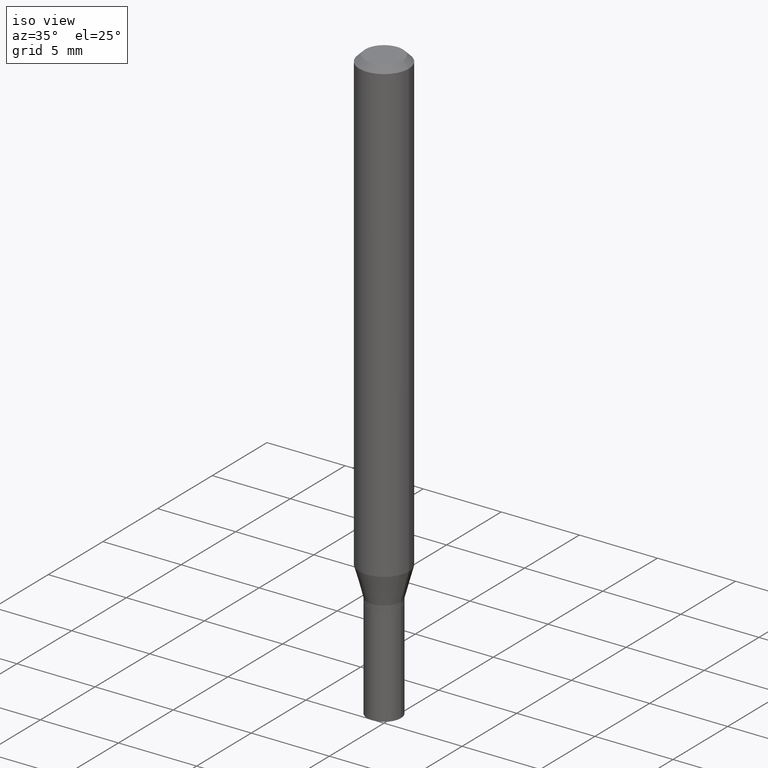
[diagram: clean part render]
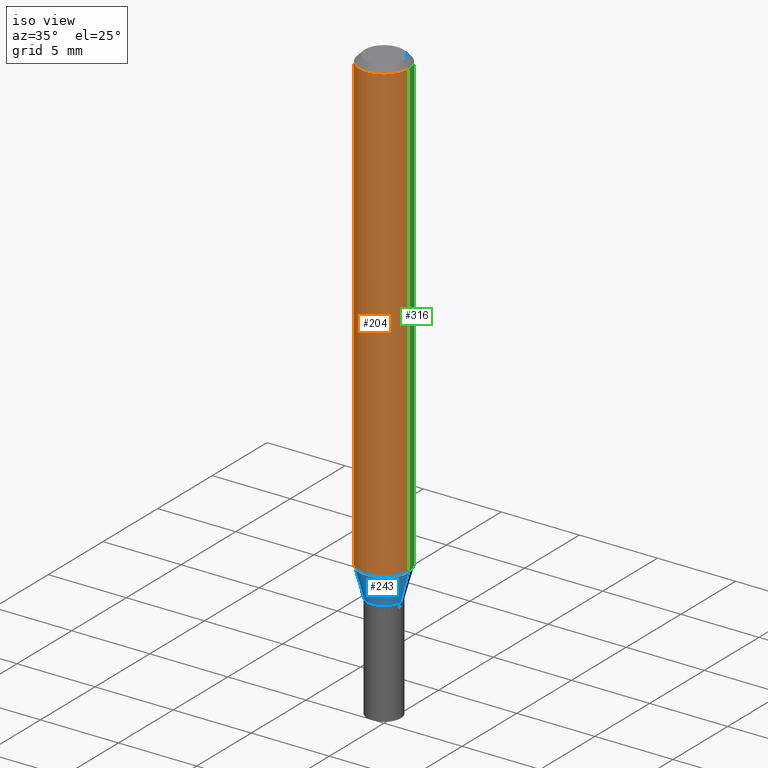
[diagram: same view with three faces highlighted in distinct colors, each labeled with its STEP entity id]
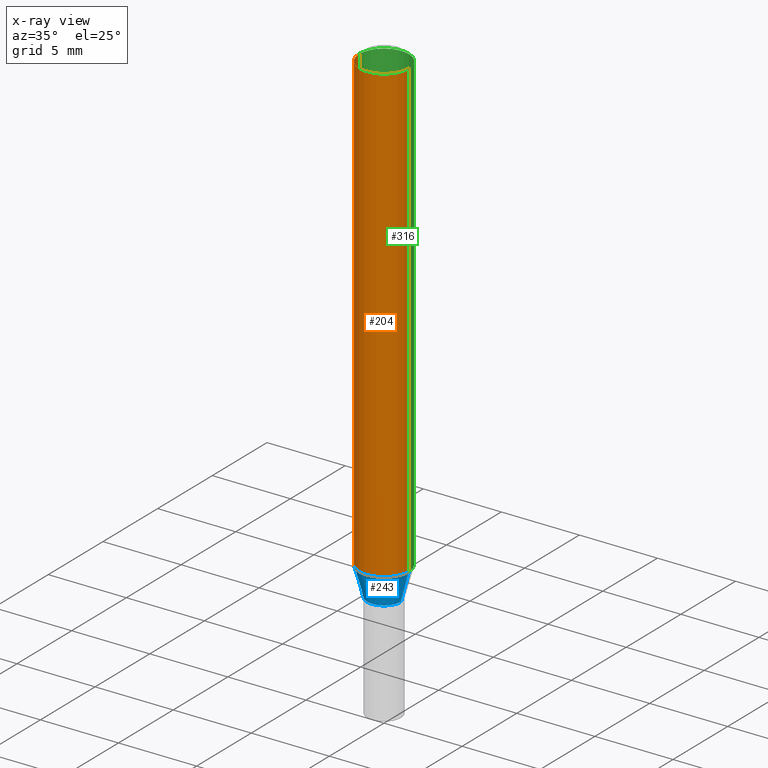
[diagram: x-ray of the same camera — body ghosted, the three highlighted faces saturated]
A machine part, iso view with three faces highlighted in distinct colors.
The next image is the same camera in x-ray (body ghosted, the three faces saturated) — at least one of them is partly hidden behind the body in this view.
Their STEP definitions:

[orange] entity #204 — the highlighted cylindrical surface (edge-blend (fillet) strip) has radius 1.5875 mm, axis along (-0, 0, 1).
#17 = DIRECTION ( 'NONE',  ( 1.000000000000000000, -6.982962677686266711E-15, 0.000000000000000000 ) ) ;
#20 = VERTEX_POINT ( 'NONE', #63 ) ;
#37 = CIRCLE ( 'NONE', #434, 0.06250000000000000000 ) ;
#41 = FACE_OUTER_BOUND ( 'NONE', #342, .T. ) ;
#63 = CARTESIAN_POINT ( 'NONE',  ( -0.06250000000000000000, -3.607282528616397190E-15, -1.160358983848622350 ) ) ;
#72 = LINE ( 'NONE', #353, #432 ) ;
#116 = CARTESIAN_POINT ( 'NONE',  ( 0.000000000000000000, 0.000000000000000000, 0.000000000000000000 ) ) ;
#121 = DIRECTION ( 'NONE',  ( -2.445468806185136597E-29, 3.491481338843145583E-15, 1.000000000000000000 ) ) ;
#132 = EDGE_CURVE ( 'NONE', #269, #461, #72, .T. ) ;
#146 = CARTESIAN_POINT ( 'NONE',  ( 2.837621698978488538E-29, -4.051371738466459806E-15, -1.160358983848622350 ) ) ;
#165 = CARTESIAN_POINT ( 'NONE',  ( -0.06250000000000000000, -1.607782769424491024E-15, -0.01499999999999999944 ) ) ;
#184 = DIRECTION ( 'NONE',  ( -2.445468806185136597E-29, 3.491481338843145583E-15, 1.000000000000000000 ) ) ;
#198 = VECTOR ( 'NONE', #444, 39.37007874015748143 ) ;
#202 = ORIENTED_EDGE ( 'NONE', *, *, #132, .T. ) ;
#204 = ADVANCED_FACE ( 'NONE', ( #41 ), #296, .T. ) ;
#219 = EDGE_CURVE ( 'NONE', #20, #269, #230, .T. ) ;
#230 = CIRCLE ( 'NONE', #441, 0.06250000000000000000 ) ;
#249 = ORIENTED_EDGE ( 'NONE', *, *, #340, .F. ) ;
#269 = VERTEX_POINT ( 'NONE', #407 ) ;
#288 = ORIENTED_EDGE ( 'NONE', *, *, #219, .T. ) ;
#294 = DIRECTION ( 'NONE',  ( -2.445468806185136597E-29, 3.491481338843145583E-15, 1.000000000000000000 ) ) ;
#296 = CYLINDRICAL_SURFACE ( 'NONE', #446, 0.06250000000000000000 ) ;
#302 = CARTESIAN_POINT ( 'NONE',  ( 3.668203209277705088E-31, -5.237222008264718399E-17, -0.01499999999999999944 ) ) ;
#325 = DIRECTION ( 'NONE',  ( 1.000000000000000000, -6.982962677686266711E-15, 4.876176775795935793E-29 ) ) ;
#337 = EDGE_CURVE ( 'NONE', #416, #461, #37, .T. ) ;
#340 = EDGE_CURVE ( 'NONE', #20, #416, #447, .T. ) ;
#342 = EDGE_LOOP ( 'NONE', ( #249, #288, #202, #408 ) ) ;
#353 = CARTESIAN_POINT ( 'NONE',  ( 0.06250000000000000000, -4.364351673553916694E-16, 3.047610484872459871E-30 ) ) ;
#357 = DIRECTION ( 'NONE',  ( -2.445468806185136877E-29, 3.491481338843145188E-15, 1.000000000000000000 ) ) ;
#404 = CARTESIAN_POINT ( 'NONE',  ( -0.06250000000000000000, 4.440892098500626162E-16, -3.074334431409316114E-30 ) ) ;
#407 = CARTESIAN_POINT ( 'NONE',  ( 0.06250000000000000000, -4.487806905821851475E-15, -1.160358983848622350 ) ) ;
#408 = ORIENTED_EDGE ( 'NONE', *, *, #337, .F. ) ;
#416 = VERTEX_POINT ( 'NONE', #165 ) ;
#417 = CARTESIAN_POINT ( 'NONE',  ( 0.06250000000000000000, -4.888073874380388472E-16, -0.01499999999999999944 ) ) ;
#432 = VECTOR ( 'NONE', #357, 39.37007874015748143 ) ;
#434 = AXIS2_PLACEMENT_3D ( 'NONE', #302, #121, #17 ) ;
#436 = DIRECTION ( 'NONE',  ( 1.000000000000000000, -6.982962677686270655E-15, 0.000000000000000000 ) ) ;
#441 = AXIS2_PLACEMENT_3D ( 'NONE', #146, #294, #436 ) ;
#444 = DIRECTION ( 'NONE',  ( -2.445468806185136877E-29, 3.491481338843145188E-15, 1.000000000000000000 ) ) ;
#446 = AXIS2_PLACEMENT_3D ( 'NONE', #116, #184, #325 ) ;
#447 = LINE ( 'NONE', #404, #198 ) ;
#461 = VERTEX_POINT ( 'NONE', #417 ) ;

[blue] entity #243 — the highlighted conical surface has half-angle 15 deg.
#15 = CARTESIAN_POINT ( 'NONE',  ( 3.020153975638643988E-29, -4.311979453471284998E-15, -1.235000000000000098 ) ) ;
#20 = VERTEX_POINT ( 'NONE', #63 ) ;
#26 = VERTEX_POINT ( 'NONE', #242 ) ;
#28 = ORIENTED_EDGE ( 'NONE', *, *, #226, .T. ) ;
#30 = EDGE_CURVE ( 'NONE', #26, #20, #306, .T. ) ;
#38 = DIRECTION ( 'NONE',  ( 0.2588190451025209615, 1.565188264969624926E-15, 0.9659258262890682012 ) ) ;
#49 = AXIS2_PLACEMENT_3D ( 'NONE', #15, #158, #401 ) ;
#63 = CARTESIAN_POINT ( 'NONE',  ( -0.06250000000000000000, -3.607282528616397190E-15, -1.160358983848622350 ) ) ;
#100 = ORIENTED_EDGE ( 'NONE', *, *, #30, .F. ) ;
#104 = VECTOR ( 'NONE', #38, 39.37007874015748143 ) ;
#105 = CONICAL_SURFACE ( 'NONE', #49, 0.04249999999999993366, 0.2617993877991496299 ) ;
#112 = AXIS2_PLACEMENT_3D ( 'NONE', #261, #396, #330 ) ;
#137 = VECTOR ( 'NONE', #375, 39.37007874015748143 ) ;
#143 = EDGE_CURVE ( 'NONE', #420, #269, #181, .T. ) ;
#146 = CARTESIAN_POINT ( 'NONE',  ( 2.837621698978488538E-29, -4.051371738466459806E-15, -1.160358983848622350 ) ) ;
#158 = DIRECTION ( 'NONE',  ( -2.445468806185136597E-29, 3.491481338843145583E-15, 1.000000000000000000 ) ) ;
#162 = CARTESIAN_POINT ( 'NONE',  ( 0.04249999999999993366, -4.608755367272951648E-15, -1.235000000000000098 ) ) ;
#181 = LINE ( 'NONE', #257, #104 ) ;
#209 = ORIENTED_EDGE ( 'NONE', *, *, #143, .T. ) ;
#219 = EDGE_CURVE ( 'NONE', #20, #269, #230, .T. ) ;
#226 = EDGE_CURVE ( 'NONE', #26, #420, #262, .T. ) ;
#230 = CIRCLE ( 'NONE', #441, 0.06250000000000000000 ) ;
#242 = CARTESIAN_POINT ( 'NONE',  ( -0.04249999999999993366, -3.808640659694819867E-15, -1.235000000000000098 ) ) ;
#243 = ADVANCED_FACE ( 'NONE', ( #443 ), #105, .T. ) ;
#246 = EDGE_LOOP ( 'NONE', ( #100, #28, #209, #250 ) ) ;
#250 = ORIENTED_EDGE ( 'NONE', *, *, #219, .F. ) ;
#257 = CARTESIAN_POINT ( 'NONE',  ( 0.04249999999999993366, -4.608755367272951648E-15, -1.235000000000000098 ) ) ;
#261 = CARTESIAN_POINT ( 'NONE',  ( 3.020153975638643988E-29, -4.311979453471284998E-15, -1.235000000000000098 ) ) ;
#262 = CIRCLE ( 'NONE', #112, 0.04249999999999993366 ) ;
#269 = VERTEX_POINT ( 'NONE', #407 ) ;
#294 = DIRECTION ( 'NONE',  ( -2.445468806185136597E-29, 3.491481338843145583E-15, 1.000000000000000000 ) ) ;
#306 = LINE ( 'NONE', #459, #137 ) ;
#330 = DIRECTION ( 'NONE',  ( 1.000000000000000000, -6.982962677686275388E-15, 0.000000000000000000 ) ) ;
#375 = DIRECTION ( 'NONE',  ( -0.2588190451025209615, 5.211531920934547097E-15, 0.9659258262890682012 ) ) ;
#396 = DIRECTION ( 'NONE',  ( -2.445468806185136597E-29, 3.491481338843145583E-15, 1.000000000000000000 ) ) ;
#401 = DIRECTION ( 'NONE',  ( 1.000000000000000000, -6.982962677686275388E-15, 0.000000000000000000 ) ) ;
#407 = CARTESIAN_POINT ( 'NONE',  ( 0.06250000000000000000, -4.487806905821851475E-15, -1.160358983848622350 ) ) ;
#420 = VERTEX_POINT ( 'NONE', #162 ) ;
#436 = DIRECTION ( 'NONE',  ( 1.000000000000000000, -6.982962677686270655E-15, 0.000000000000000000 ) ) ;
#441 = AXIS2_PLACEMENT_3D ( 'NONE', #146, #294, #436 ) ;
#443 = FACE_OUTER_BOUND ( 'NONE', #246, .T. ) ;
#459 = CARTESIAN_POINT ( 'NONE',  ( -0.04249999999999993366, -4.009998790773243334E-15, -1.235000000000000098 ) ) ;

[green] entity #316 — the highlighted cylindrical surface (edge-blend (fillet) strip) has radius 1.5875 mm, axis along (-0, 0, 1).
#9 = CARTESIAN_POINT ( 'NONE',  ( 0.000000000000000000, 0.000000000000000000, 0.000000000000000000 ) ) ;
#20 = VERTEX_POINT ( 'NONE', #63 ) ;
#25 = CIRCLE ( 'NONE', #167, 0.06250000000000000000 ) ;
#63 = CARTESIAN_POINT ( 'NONE',  ( -0.06250000000000000000, -3.607282528616397190E-15, -1.160358983848622350 ) ) ;
#72 = LINE ( 'NONE', #353, #432 ) ;
#76 = EDGE_CURVE ( 'NONE', #461, #416, #25, .T. ) ;
#91 = DIRECTION ( 'NONE',  ( -2.445468806185136597E-29, 3.491481338843145583E-15, 1.000000000000000000 ) ) ;
#132 = EDGE_CURVE ( 'NONE', #269, #461, #72, .T. ) ;
#165 = CARTESIAN_POINT ( 'NONE',  ( -0.06250000000000000000, -1.607782769424491024E-15, -0.01499999999999999944 ) ) ;
#167 = AXIS2_PLACEMENT_3D ( 'NONE', #291, #322, #212 ) ;
#175 = ORIENTED_EDGE ( 'NONE', *, *, #340, .T. ) ;
#176 = ORIENTED_EDGE ( 'NONE', *, *, #76, .F. ) ;
#198 = VECTOR ( 'NONE', #444, 39.37007874015748143 ) ;
#206 = CIRCLE ( 'NONE', #239, 0.06250000000000000000 ) ;
#212 = DIRECTION ( 'NONE',  ( 1.000000000000000000, -6.982962677686266711E-15, 0.000000000000000000 ) ) ;
#227 = CARTESIAN_POINT ( 'NONE',  ( 2.837621698978488538E-29, -4.051371738466459806E-15, -1.160358983848622350 ) ) ;
#239 = AXIS2_PLACEMENT_3D ( 'NONE', #227, #336, #360 ) ;
#240 = ORIENTED_EDGE ( 'NONE', *, *, #132, .F. ) ;
#244 = ORIENTED_EDGE ( 'NONE', *, *, #271, .T. ) ;
#267 = CYLINDRICAL_SURFACE ( 'NONE', #309, 0.06250000000000000000 ) ;
#269 = VERTEX_POINT ( 'NONE', #407 ) ;
#271 = EDGE_CURVE ( 'NONE', #269, #20, #206, .T. ) ;
#274 = EDGE_LOOP ( 'NONE', ( #244, #175, #176, #240 ) ) ;
#291 = CARTESIAN_POINT ( 'NONE',  ( 3.668203209277705088E-31, -5.237222008264718399E-17, -0.01499999999999999944 ) ) ;
#309 = AXIS2_PLACEMENT_3D ( 'NONE', #9, #91, #335 ) ;
#316 = ADVANCED_FACE ( 'NONE', ( #440 ), #267, .T. ) ;
#322 = DIRECTION ( 'NONE',  ( -2.445468806185136597E-29, 3.491481338843145583E-15, 1.000000000000000000 ) ) ;
#335 = DIRECTION ( 'NONE',  ( 1.000000000000000000, -6.982962677686266711E-15, 4.876176775795935793E-29 ) ) ;
#336 = DIRECTION ( 'NONE',  ( -2.445468806185136597E-29, 3.491481338843145583E-15, 1.000000000000000000 ) ) ;
#340 = EDGE_CURVE ( 'NONE', #20, #416, #447, .T. ) ;
#353 = CARTESIAN_POINT ( 'NONE',  ( 0.06250000000000000000, -4.364351673553916694E-16, 3.047610484872459871E-30 ) ) ;
#357 = DIRECTION ( 'NONE',  ( -2.445468806185136877E-29, 3.491481338843145188E-15, 1.000000000000000000 ) ) ;
#360 = DIRECTION ( 'NONE',  ( 1.000000000000000000, -6.982962677686270655E-15, 0.000000000000000000 ) ) ;
#404 = CARTESIAN_POINT ( 'NONE',  ( -0.06250000000000000000, 4.440892098500626162E-16, -3.074334431409316114E-30 ) ) ;
#407 = CARTESIAN_POINT ( 'NONE',  ( 0.06250000000000000000, -4.487806905821851475E-15, -1.160358983848622350 ) ) ;
#416 = VERTEX_POINT ( 'NONE', #165 ) ;
#417 = CARTESIAN_POINT ( 'NONE',  ( 0.06250000000000000000, -4.888073874380388472E-16, -0.01499999999999999944 ) ) ;
#432 = VECTOR ( 'NONE', #357, 39.37007874015748143 ) ;
#440 = FACE_OUTER_BOUND ( 'NONE', #274, .T. ) ;
#444 = DIRECTION ( 'NONE',  ( -2.445468806185136877E-29, 3.491481338843145188E-15, 1.000000000000000000 ) ) ;
#447 = LINE ( 'NONE', #404, #198 ) ;
#461 = VERTEX_POINT ( 'NONE', #417 ) ;